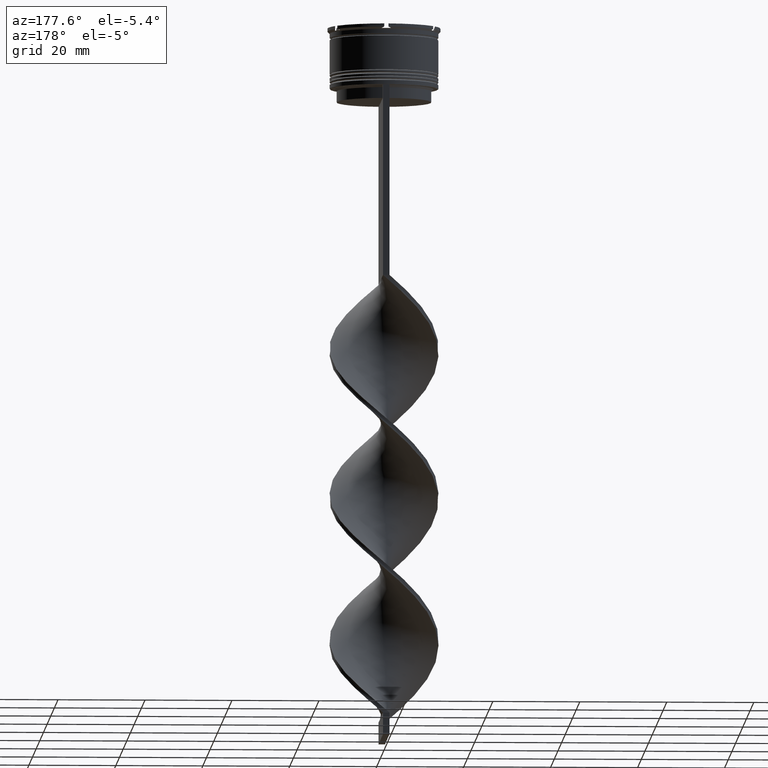
[diagram: clean part render]
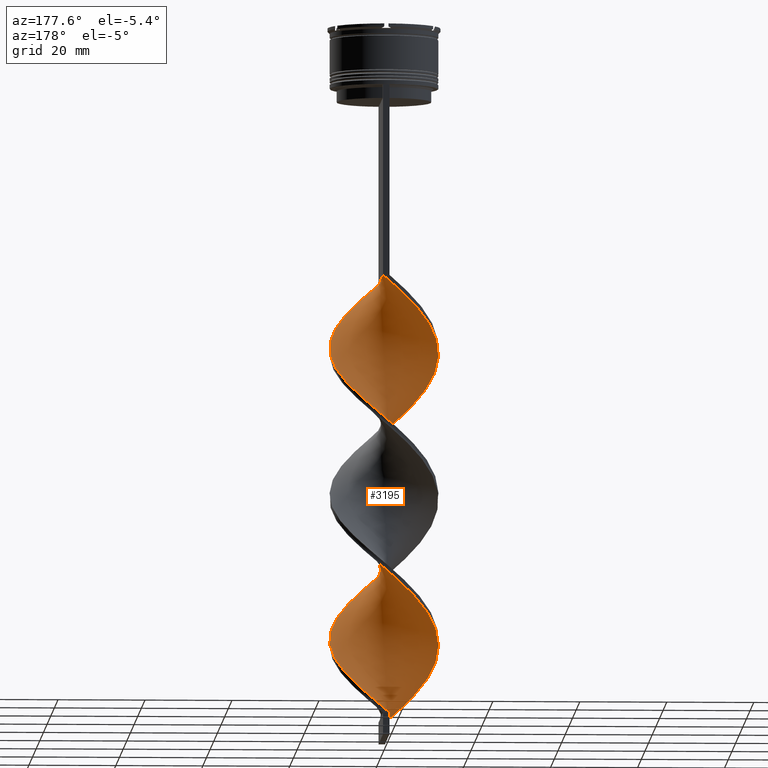
[diagram: same view with one face highlighted and labeled with its STEP entity id]
A machine part, auxiliary view. The second image highlights one B-rep face of the part: STEP entity #3195.
In plain terms, the highlighted face is a freeform B-spline surface patch.
Its self-contained STEP definition (entity closure, byte-faithful):
#1 = CARTESIAN_POINT ( 'NONE',  ( -12.13740119476139867, 3.350863215071111512, -72.58888888888890278 ) ) ;
#8 = CARTESIAN_POINT ( 'NONE',  ( 12.13740119476140045, 3.350863215071107515, -144.4111111111111541 ) ) ;
#26 = CARTESIAN_POINT ( 'NONE',  ( -3.332506835772350851, -12.07091124105925140, -89.42222222222223138 ) ) ;
#41 = CARTESIAN_POINT ( 'NONE',  ( -7.849775853840620599, 9.845090710256195976, -133.1888888888889255 ) ) ;
#47 = CARTESIAN_POINT ( 'NONE',  ( 0.5638029408209503934, -12.57882817644926199, -92.78888888888889142 ) ) ;
#60 = CARTESIAN_POINT ( 'NONE',  ( 9.791158273236577614, 7.806773960377676680, -116.3555555555555685 ) ) ;
#66 = CARTESIAN_POINT ( 'NONE',  ( -10.45031754730548279, 6.899519052838331667, -69.22222222222222854 ) ) ;
#79 = CARTESIAN_POINT ( 'NONE',  ( 12.11996919947063311, 3.149420042465475245, -111.8666666666666742 ) ) ;
#84 = CARTESIAN_POINT ( 'NONE',  ( 0.7500000000000002220, -12.50000000000000000, -125.3333333333333570 ) ) ;
#105 = CARTESIAN_POINT ( 'NONE',  ( 0.7500000000000002220, 12.50000000000000000, -125.3333333333333570 ) ) ;
#119 = CARTESIAN_POINT ( 'NONE',  ( -12.45098658456436169, 1.875559948311569913, -106.2555555555555742 ) ) ;
#124 = CARTESIAN_POINT ( 'NONE',  ( 12.45098658456436169, 1.875559948311554370, -110.7444444444444542 ) ) ;
#132 = CARTESIAN_POINT ( 'NONE',  ( -0.5638029408209555005, 12.57882817644925844, -126.4555555555555770 ) ) ;
#138 = CARTESIAN_POINT ( 'NONE',  ( -7.954078399437124247, 9.671873490467490342, -98.40000000000001990 ) ) ;
#143 = CARTESIAN_POINT ( 'NONE',  ( 12.45098658456436169, -1.875559948311565917, -72.58888888888890278 ) ) ;
#153 = CARTESIAN_POINT ( 'NONE',  ( 12.13740119476139867, -3.350863215071115953, -106.2555555555555742 ) ) ;
#159 = CARTESIAN_POINT ( 'NONE',  ( 5.631329961908789983, 11.26201202755619946, -86.05555555555557135 ) ) ;
#164 = CARTESIAN_POINT ( 'NONE',  ( 11.78895181437690276, -4.423280136619393232, -70.34444444444443434 ) ) ;
#183 = CARTESIAN_POINT ( 'NONE',  ( -6.740552907874707067, -10.55355136890619860, -118.6000000000000085 ) ) ;
#195 = CARTESIAN_POINT ( 'NONE',  ( -12.13740119476140222, -3.350863215071100853, -110.7444444444444542 ) ) ;
#213 = CARTESIAN_POINT ( 'NONE',  ( 7.954078399437126023, -9.671873490467488566, -132.0666666666666629 ) ) ;
#217 = CARTESIAN_POINT ( 'NONE',  ( 11.78895181437690454, 4.423280136619385239, -112.9888888888888943 ) ) ;
#247 = CARTESIAN_POINT ( 'NONE',  ( 1.865285434671642317, 12.38277877728589083, -89.42222222222223138 ) ) ;
#256 = CARTESIAN_POINT ( 'NONE',  ( 12.50992003955415655, -0.5607143693194658329, -141.0444444444444514 ) ) ;
#261 = CARTESIAN_POINT ( 'NONE',  ( -12.13740119476139867, 3.350863215071111512, -72.58888888888890278 ) ) ;
#283 = CARTESIAN_POINT ( 'NONE',  ( -0.7499999999999996669, 4.166666666666667851, -159.0000000000000000 ) ) ;
#305 = CARTESIAN_POINT ( 'NONE',  ( -2.063802940820959275, -12.42117182355074334, -90.54444444444445139 ) ) ;
#308 = CARTESIAN_POINT ( 'NONE',  ( 12.13740119476140045, 3.350863215071107515, -144.4111111111111256 ) ) ;
#345 = CARTESIAN_POINT ( 'NONE',  ( -4.399048945215550788, 11.72437070283936222, -129.8222222222222229 ) ) ;
#349 = EDGE_CURVE ( 'NONE', #1403, #744, #658, .T. ) ;
#356 = CARTESIAN_POINT ( 'NONE',  ( -9.725148873555948370, 7.997891686931351884, -68.10000000000000853 ) ) ;
#369 = CARTESIAN_POINT ( 'NONE',  ( -2.063802940820959275, -12.42117182355074334, -157.8777777777777942 ) ) ;
#372 = CARTESIAN_POINT ( 'NONE',  ( 12.35312734465267859, 2.052497212371872326, -143.2888888888889198 ) ) ;
#389 = CARTESIAN_POINT ( 'NONE',  ( 0.5638029408209505045, -12.57882817644926376, -92.78888888888889142 ) ) ;
#392 = CARTESIAN_POINT ( 'NONE',  ( 9.791158273236570508, -7.806773960377682009, -134.3111111111111313 ) ) ;
#408 = CARTESIAN_POINT ( 'NONE',  ( 7.954078399437128688, 9.671873490467486789, -118.6000000000000085 ) ) ;
#417 = CARTESIAN_POINT ( 'NONE',  ( -12.11996919947063311, -3.149420042465476577, -145.5333333333333599 ) ) ;
#426 = CARTESIAN_POINT ( 'NONE',  ( 6.937523532635171186, -10.50788081788356187, -63.61111111111112137 ) ) ;
#433 = CARTESIAN_POINT ( 'NONE',  ( -11.17548622105502254, 5.801146418745307898, -137.6777777777777487 ) ) ;
#442 = CARTESIAN_POINT ( 'NONE',  ( -12.50992003955415832, -0.5607143693194613920, -143.2888888888889198 ) ) ;
#447 = CARTESIAN_POINT ( 'NONE',  ( 8.787462363698287149, 8.921491198593770378, -82.68888888888889710 ) ) ;
#452 = CARTESIAN_POINT ( 'NONE',  ( -5.769367131679449479, 11.11426573822566333, -96.15555555555556566 ) ) ;
#460 = CARTESIAN_POINT ( 'NONE',  ( -5.631329961908784654, 11.26201202755620479, -130.9444444444444571 ) ) ;
#464 = CARTESIAN_POINT ( 'NONE',  ( 0.5638029408209590532, 12.57882817644925844, -90.54444444444445139 ) ) ;
#468 = CARTESIAN_POINT ( 'NONE',  ( 7.849775853840625039, 9.845090710256194200, -83.81111111111111711 ) ) ;
#477 = CARTESIAN_POINT ( 'NONE',  ( 11.20031754730548812, 5.600480947161662115, -114.1111111111111285 ) ) ;
#485 = CARTESIAN_POINT ( 'NONE',  ( -1.865285434671644094, -12.38277877728589083, -123.0888888888888886 ) ) ;
#491 = CARTESIAN_POINT ( 'NONE',  ( 12.35312734465267859, 2.052497212371872326, -75.95555555555554861 ) ) ;
#509 = CARTESIAN_POINT ( 'NONE',  ( 4.399048945215554340, 11.72437070283936045, -87.17777777777779136 ) ) ;
#523 = CARTESIAN_POINT ( 'NONE',  ( 0.7500000000000002220, 12.50000000000000000, -58.00000000000000000 ) ) ;
#525 = CARTESIAN_POINT ( 'NONE',  ( -8.787462363698288925, -8.921491198593770378, -116.3555555555555685 ) ) ;
#545 = CARTESIAN_POINT ( 'NONE',  ( 4.399048945215554340, 11.72437070283936045, -154.5111111111111200 ) ) ;
#549 = CARTESIAN_POINT ( 'NONE',  ( -12.35312734465267681, 2.052497212371875879, -141.0444444444444514 ) ) ;
#557 = CARTESIAN_POINT ( 'NONE',  ( 12.11996919947063134, -3.149420042465478353, -71.46666666666668277 ) ) ;
#569 = CARTESIAN_POINT ( 'NONE',  ( 10.61168328023406815, -6.777681757703950538, -135.4333333333333371 ) ) ;
#605 =( BOUNDED_CURVE ( )  B_SPLINE_CURVE ( 2, ( #1612, #2662, #2020, #3320, #3041, #426, #3020, #1445, #2411, #2150, #2065, #2719, #557, #1095, #2045, #4007, #4080, #3772, #1745, #3638, #1131, #1706, #447, #3693, #2981, #159, #1840, #3114, #247, #464, #1517, #2795, #2378, #1726, #1388, #1202, #138, #3948, #3991, #3000, #2487, #1769, #798, #119, #763, #1072, #1405, #1428, #2395, #2680, #3969, #3661, #782, #3677, #2703, #1116, #2083, #3355, #485, #1965, #84, #978, #3919, #2880, #1264, #1287, #3487, #1354, #392, #622, #3175, #2255, #1672, #2571, #2611, #2633, #372, #308, #951, #3242, #1988, #3537, #3831, #1901, #1581, #1651, #2589, #1309, #3895, #3561, #644 ),
 .UNSPECIFIED., .F., .T. ) 
 B_SPLINE_CURVE_WITH_KNOTS ( ( 3, 2, 2, 2, 2, 2, 2, 2, 2, 2, 2, 2, 2, 2, 2, 2, 2, 2, 2, 2, 2, 2, 2, 2, 2, 2, 2, 2, 2, 2, 2, 2, 2, 2, 2, 2, 2, 2, 2, 2, 2, 2, 2, 2, 2, 3 ),
 ( 0.000000000000000000, 0.01666666666666666644, 0.03333333333333333287, 0.05000000000000000971, 0.06666666666666666574, 0.08333333333333332871, 0.1000000000000000194, 0.1166666666666666546, 0.1333333333333333315, 0.1499999999999999944, 0.1666666666666666574, 0.1833333333333333204, 0.2000000000000000389, 0.2166666666666666741, 0.2333333333333333093, 0.2500000000000000000, 0.2666666666666666630, 0.2833333333333333259, 0.2999999999999999889, 0.3166666666666666519, 0.3333333333333333148, 0.3499999999999999223, 0.3666666666666666408, 0.3833333333333333592, 0.4000000000000000777, 0.4166666666666666852, 0.4333333333333333481, 0.4500000000000000111, 0.4666666666666666186, 0.4833333333333333370, 0.5000000000000000000, 0.5166666666666667185, 0.5333333333333333259, 0.5500000000000000444, 0.5666666666666666519, 0.5833333333333333703, 0.5999999999999999778, 0.6166666666666666963, 0.6333333333333333037, 0.6500000000000000222, 0.6666666666666666297, 0.6833333333333332371, 0.6999999999999998446, 0.7166666666666666741, 0.7333333333333332815, 0.7500000000000000000 ),
 .UNSPECIFIED. ) 
 CURVE ( )  GEOMETRIC_REPRESENTATION_ITEM ( )  RATIONAL_B_SPLINE_CURVE ( ( 1.000000000000000000, 0.9945218953682732899, 1.000000000000000000, 0.9945218953682732899, 1.000000000000000000, 0.9945218953682732899, 1.000000000000000000, 0.9945218953682732899, 1.000000000000000000, 0.9945218953682732899, 1.000000000000000000, 0.9945218953682732899, 1.000000000000000000, 0.9945218953682732899, 1.000000000000000000, 0.9945218953682732899, 1.000000000000000000, 0.9945218953682732899, 1.000000000000000000, 0.9945218953682732899, 1.000000000000000000, 0.9945218953682732899, 1.000000000000000000, 0.9945218953682732899, 1.000000000000000000, 0.9945218953682732899, 1.000000000000000000, 0.9945218953682732899, 1.000000000000000000, 0.9945218953682732899, 1.000000000000000000, 0.9945218953682732899, 1.000000000000000000, 0.9945218953682732899, 1.000000000000000000, 0.9945218953682732899, 1.000000000000000000, 0.9945218953682732899, 1.000000000000000000, 0.9945218953682732899, 1.000000000000000000, 0.9945218953682732899, 1.000000000000000000, 0.9945218953682732899, 1.000000000000000000, 0.9945218953682732899, 1.000000000000000000, 0.9945218953682732899, 1.000000000000000000, 0.9945218953682732899, 1.000000000000000000, 0.9945218953682732899, 1.000000000000000000, 0.9945218953682732899, 1.000000000000000000, 0.9945218953682732899, 1.000000000000000000, 0.9945218953682732899, 1.000000000000000000, 0.9945218953682732899, 1.000000000000000000, 0.9945218953682732899, 1.000000000000000000, 0.9945218953682732899, 1.000000000000000000, 0.9945218953682732899, 1.000000000000000000, 0.9945218953682732899, 1.000000000000000000, 0.9945218953682732899, 1.000000000000000000, 0.9945218953682732899, 1.000000000000000000, 0.9945218953682732899, 1.000000000000000000, 0.9945218953682732899, 1.000000000000000000, 0.9945218953682732899, 1.000000000000000000, 0.9945218953682732899, 1.000000000000000000, 0.9945218953682732899, 1.000000000000000000, 0.9945218953682732899, 1.000000000000000000, 0.9945218953682732899, 1.000000000000000000, 0.9945218953682732899, 1.000000000000000000, 0.9945218953682732899, 1.000000000000000000 ) ) 
 REPRESENTATION_ITEM ( '' )  );
#612 = CARTESIAN_POINT ( 'NONE',  ( 10.45031754730548457, 6.899519052838327227, -147.7777777777777715 ) ) ;
#618 = CARTESIAN_POINT ( 'NONE',  ( -12.35312734465267681, 2.052497212371875879, -73.71111111111112280 ) ) ;
#622 = CARTESIAN_POINT ( 'NONE',  ( 10.61168328023406637, -6.777681757703950538, -135.4333333333333371 ) ) ;
#628 = CARTESIAN_POINT ( 'NONE',  ( -5.769367131679456584, -11.11426573822565977, -87.17777777777779136 ) ) ;
#644 = CARTESIAN_POINT ( 'NONE',  ( -0.7499999999999986677, 12.50000000000000000, -159.0000000000000000 ) ) ;
#648 = CARTESIAN_POINT ( 'NONE',  ( -5.631329961908784654, 11.26201202755620479, -63.61111111111112137 ) ) ;
#658 = B_SPLINE_CURVE_WITH_KNOTS ( 'NONE', 3,
 ( #1939, #4122, #283, #3511 ),
 .UNSPECIFIED., .F., .F.,
 ( 4, 4 ),
 ( 0.000000000000000000, 1.000000000000000000 ),
 .UNSPECIFIED. ) ;
#681 = CARTESIAN_POINT ( 'NONE',  ( -6.937523532635175627, -10.50788081788355832, -153.3888888888889142 ) ) ;
#693 = CARTESIAN_POINT ( 'NONE',  ( 4.399048945215547235, -11.72437070283936400, -96.15555555555556566 ) ) ;
#706 = CARTESIAN_POINT ( 'NONE',  ( 0.7500000000000002220, -12.50000000000000000, -58.00000000000000000 ) ) ;
#716 = CARTESIAN_POINT ( 'NONE',  ( -3.166767928522319142, 12.18672937812252322, -61.36666666666666003 ) ) ;
#726 = CARTESIAN_POINT ( 'NONE',  ( 11.78895181437690454, 4.423280136619385239, -112.9888888888888943 ) ) ;
#733 = CARTESIAN_POINT ( 'NONE',  ( 12.50992003955415832, 0.5607143693194570622, -109.6222222222222342 ) ) ;
#744 = VERTEX_POINT ( 'NONE', #3549 ) ;
#746 = CARTESIAN_POINT ( 'NONE',  ( 7.849775853840617046, -9.845090710256195976, -99.52222222222223991 ) ) ;
#763 = CARTESIAN_POINT ( 'NONE',  ( -12.50992003955415832, 0.5607143693194728273, -107.3777777777777942 ) ) ;
#770 = CARTESIAN_POINT ( 'NONE',  ( -1.865285434671636988, 12.38277877728589260, -127.5777777777777828 ) ) ;
#778 = CARTESIAN_POINT ( 'NONE',  ( 6.740552907874702626, -10.55355136890619860, -98.40000000000001990 ) ) ;
#782 = CARTESIAN_POINT ( 'NONE',  ( -8.787462363698288925, -8.921491198593770378, -116.3555555555555685 ) ) ;
#787 = CARTESIAN_POINT ( 'NONE',  ( 6.740552907874705291, 10.55355136890619860, -84.93333333333333712 ) ) ;
#794 = CARTESIAN_POINT ( 'NONE',  ( 3.332506835772352627, 12.07091124105925140, -123.0888888888888886 ) ) ;
#798 = CARTESIAN_POINT ( 'NONE',  ( -12.11996919947063134, 3.149420042465479241, -105.1333333333333400 ) ) ;
#802 = CARTESIAN_POINT ( 'NONE',  ( 0.5638029408209590532, 12.57882817644926021, -90.54444444444445139 ) ) ;
#822 = CARTESIAN_POINT ( 'NONE',  ( 3.332506835772345966, -12.07091124105925317, -127.5777777777777828 ) ) ;
#825 = ORIENTED_EDGE ( 'NONE', *, *, #3042, .F. ) ;
#831 = EDGE_CURVE ( 'NONE', #4112, #744, #605, .T. ) ;
#840 = CARTESIAN_POINT ( 'NONE',  ( 11.17548622105502254, 5.801146418745304345, -79.32222222222222285 ) ) ;
#859 = CARTESIAN_POINT ( 'NONE',  ( -0.7499999999999986677, 12.50000000000000000, -91.66666666666667140 ) ) ;
#862 = CARTESIAN_POINT ( 'NONE',  ( -9.725148873555948370, 7.997891686931351884, -135.4333333333333371 ) ) ;
#904 = CARTESIAN_POINT ( 'NONE',  ( 8.970633266239079973, -8.835866163051415256, -133.1888888888889255 ) ) ;
#908 = CARTESIAN_POINT ( 'NONE',  ( -6.937523532635175627, -10.50788081788355832, -86.05555555555557135 ) ) ;
#920 = VERTEX_POINT ( 'NONE', #523 ) ;
#942 = CARTESIAN_POINT ( 'NONE',  ( 12.35312734465267859, 2.052497212371872326, -143.2888888888889198 ) ) ;
#951 = CARTESIAN_POINT ( 'NONE',  ( 11.65644370790820972, 4.576004816908207928, -145.5333333333333599 ) ) ;
#978 = CARTESIAN_POINT ( 'NONE',  ( 2.063802940820955723, -12.42117182355074334, -126.4555555555555770 ) ) ;
#983 = CARTESIAN_POINT ( 'NONE',  ( -12.56885349454395495, 0.7541312096726383585, -74.83333333333332860 ) ) ;
#996 = CARTESIAN_POINT ( 'NONE',  ( -3.166767928522319142, 12.18672937812252499, -128.6999999999999886 ) ) ;
#1017 = CARTESIAN_POINT ( 'NONE',  ( -4.601210730723739317, -11.72065065856775945, -155.6333333333333258 ) ) ;
#1028 = CARTESIAN_POINT ( 'NONE',  ( -7.954078399437126912, -9.671873490467486789, -84.93333333333333712 ) ) ;
#1041 = CARTESIAN_POINT ( 'NONE',  ( 8.787462363698281820, -8.921491198593777483, -100.6444444444444599 ) ) ;
#1049 = CARTESIAN_POINT ( 'NONE',  ( -4.399048945215550788, 11.72437070283936222, -62.48888888888889426 ) ) ;
#1060 = CARTESIAN_POINT ( 'NONE',  ( 12.35312734465267503, -2.052497212371882984, -107.3777777777777942 ) ) ;
#1066 = CARTESIAN_POINT ( 'NONE',  ( -6.740552907874703514, 10.55355136890620038, -132.0666666666666629 ) ) ;
#1072 = CARTESIAN_POINT ( 'NONE',  ( -12.56885349454395495, -0.7541312096726352499, -108.5000000000000000 ) ) ;
#1077 = CARTESIAN_POINT ( 'NONE',  ( -10.61168328023406815, -6.777681757703948762, -148.8999999999999488 ) ) ;
#1095 = CARTESIAN_POINT ( 'NONE',  ( 12.45098658456436169, -1.875559948311565694, -72.58888888888890278 ) ) ;
#1102 = CARTESIAN_POINT ( 'NONE',  ( -10.45031754730548812, -6.899519052838321009, -114.1111111111111285 ) ) ;
#1112 = CARTESIAN_POINT ( 'NONE',  ( 12.11996919947063311, 3.149420042465475245, -111.8666666666666742 ) ) ;
#1116 = CARTESIAN_POINT ( 'NONE',  ( -5.631329961908790871, -11.26201202755619946, -119.7222222222222143 ) ) ;
#1121 = CARTESIAN_POINT ( 'NONE',  ( 12.50992003955415655, -0.5607143693194658329, -73.71111111111112280 ) ) ;
#1131 = CARTESIAN_POINT ( 'NONE',  ( 10.45031754730548457, 6.899519052838327227, -80.44444444444445708 ) ) ;
#1135 = CARTESIAN_POINT ( 'NONE',  ( -0.5638029408209662696, -12.57882817644926021, -124.2111111111111370 ) ) ;
#1153 = CARTESIAN_POINT ( 'NONE',  ( 9.725148873555946594, 7.997891686931350996, -81.56666666666664867 ) ) ;
#1172 = CARTESIAN_POINT ( 'NONE',  ( 10.61168328023406815, -6.777681757703950538, -68.10000000000002274 ) ) ;
#1175 = CARTESIAN_POINT ( 'NONE',  ( 8.787462363698281820, -8.921491198593777483, -100.6444444444444599 ) ) ;
#1195 = CARTESIAN_POINT ( 'NONE',  ( -4.399048945215550788, 11.72437070283936222, -129.8222222222222229 ) ) ;
#1202 = CARTESIAN_POINT ( 'NONE',  ( -6.937523532635168522, 10.50788081788356365, -97.27777777777779988 ) ) ;
#1215 = CARTESIAN_POINT ( 'NONE',  ( 6.740552907874705291, 10.55355136890619860, -152.2666666666666799 ) ) ;
#1222 = CARTESIAN_POINT ( 'NONE',  ( -7.954078399437126912, -9.671873490467486789, -84.93333333333333712 ) ) ;
#1242 = CARTESIAN_POINT ( 'NONE',  ( -11.65644370790820794, 4.576004816908208817, -71.46666666666668277 ) ) ;
#1256 = CARTESIAN_POINT ( 'NONE',  ( 11.78895181437690276, -4.423280136619393232, -137.6777777777777487 ) ) ;
#1264 = CARTESIAN_POINT ( 'NONE',  ( 5.769367131679453031, -11.11426573822566155, -129.8222222222222229 ) ) ;
#1278 = CARTESIAN_POINT ( 'NONE',  ( 9.791158273236570508, -7.806773960377682009, -134.3111111111111313 ) ) ;
#1287 = CARTESIAN_POINT ( 'NONE',  ( 6.937523532635171186, -10.50788081788356187, -130.9444444444444571 ) ) ;
#1294 = CARTESIAN_POINT ( 'NONE',  ( -2.063802940820959275, -12.42117182355074334, -90.54444444444445139 ) ) ;
#1306 = CARTESIAN_POINT ( 'NONE',  ( 4.601210730723740205, 11.72065065856775945, -121.9666666666666544 ) ) ;
#1309 = CARTESIAN_POINT ( 'NONE',  ( 3.166767928522320474, 12.18672937812252322, -155.6333333333333542 ) ) ;
#1314 = CARTESIAN_POINT ( 'NONE',  ( 1.865285434671633880, -12.38277877728589260, -93.91111111111111143 ) ) ;
#1328 = CARTESIAN_POINT ( 'NONE',  ( -9.791158273236575837, -7.806773960377678456, -150.0222222222222115 ) ) ;
#1349 = CARTESIAN_POINT ( 'NONE',  ( -8.787462363698281820, 8.921491198593773930, -134.3111111111111313 ) ) ;
#1354 = CARTESIAN_POINT ( 'NONE',  ( 8.970633266239079973, -8.835866163051415256, -133.1888888888889255 ) ) ;
#1362 = CARTESIAN_POINT ( 'NONE',  ( -4.601210730723738429, -11.72065065856775767, -88.29999999999998295 ) ) ;
#1375 = CARTESIAN_POINT ( 'NONE',  ( 12.56885349454395495, -0.7541312096726399128, -108.5000000000000000 ) ) ;
#1387 = EDGE_LOOP ( 'NONE', ( #825, #2472, #2143, #1843 ) ) ;
#1388 = CARTESIAN_POINT ( 'NONE',  ( -5.769367131679449479, 11.11426573822566333, -96.15555555555556566 ) ) ;
#1393 = CARTESIAN_POINT ( 'NONE',  ( -12.56885349454395495, 0.7541312096726383585, -142.1666666666666856 ) ) ;
#1400 = CARTESIAN_POINT ( 'NONE',  ( -11.78895181437690276, -4.423280136619389680, -146.6555555555555657 ) ) ;
#1403 = VERTEX_POINT ( 'NONE', #1472 ) ;
#1405 = CARTESIAN_POINT ( 'NONE',  ( -12.35312734465267859, -2.052497212371867885, -109.6222222222222342 ) ) ;
#1411 = CARTESIAN_POINT ( 'NONE',  ( 10.45031754730548457, 6.899519052838327227, -80.44444444444445708 ) ) ;
#1420 = CARTESIAN_POINT ( 'NONE',  ( 5.631329961908781989, -11.26201202755620479, -97.27777777777779988 ) ) ;
#1428 = CARTESIAN_POINT ( 'NONE',  ( -12.13740119476140222, -3.350863215071100409, -110.7444444444444542 ) ) ;
#1432 = CARTESIAN_POINT ( 'NONE',  ( 4.601210730723737541, -11.72065065856775945, -61.36666666666666003 ) ) ;
#1445 = CARTESIAN_POINT ( 'NONE',  ( 8.970633266239079973, -8.835866163051415256, -65.85555555555555429 ) ) ;
#1450 = CARTESIAN_POINT ( 'NONE',  ( -5.631329961908790871, -11.26201202755619768, -119.7222222222222143 ) ) ;
#1462 = CARTESIAN_POINT ( 'NONE',  ( -12.50992003955415832, 0.5607143693194728273, -107.3777777777777942 ) ) ;
#1472 = CARTESIAN_POINT ( 'NONE',  ( -0.7500000000000017764, -12.50000000000000000, -159.0000000000000000 ) ) ;
#1485 = CARTESIAN_POINT ( 'NONE',  ( -7.954078399437124247, 9.671873490467490342, -98.40000000000001990 ) ) ;
#1488 = CARTESIAN_POINT ( 'NONE',  ( 5.769367131679463689, 11.11426573822565622, -120.8444444444444485 ) ) ;
#1510 = CARTESIAN_POINT ( 'NONE',  ( -3.166767928522319142, 12.18672937812252322, -128.7000000000000171 ) ) ;
#1512 = CARTESIAN_POINT ( 'NONE',  ( -10.45031754730548279, 6.899519052838331667, -69.22222222222222854 ) ) ;
#1517 = CARTESIAN_POINT ( 'NONE',  ( -0.7499999999999986677, 12.50000000000000000, -91.66666666666667140 ) ) ;
#1531 = CARTESIAN_POINT ( 'NONE',  ( -12.50992003955415832, -0.5607143693194613920, -75.95555555555554861 ) ) ;
#1551 = CARTESIAN_POINT ( 'NONE',  ( 5.631329961908789983, 11.26201202755619768, -153.3888888888889142 ) ) ;
#1557 = CARTESIAN_POINT ( 'NONE',  ( -6.740552907874703514, 10.55355136890620038, -64.73333333333333428 ) ) ;
#1572 = CARTESIAN_POINT ( 'NONE',  ( 3.166767928522320918, 12.18672937812252499, -155.6333333333333258 ) ) ;
#1578 = CARTESIAN_POINT ( 'NONE',  ( -12.11996919947063311, -3.149420042465476577, -78.20000000000000284 ) ) ;
#1581 = CARTESIAN_POINT ( 'NONE',  ( 6.740552907874705291, 10.55355136890619860, -152.2666666666666799 ) ) ;
#1591 = CARTESIAN_POINT ( 'NONE',  ( 12.45098658456436169, -1.875559948311565917, -139.9222222222222172 ) ) ;
#1595 = CARTESIAN_POINT ( 'NONE',  ( -11.78895181437690276, -4.423280136619389680, -79.32222222222222285 ) ) ;
#1612 = CARTESIAN_POINT ( 'NONE',  ( 0.7500000000000002220, -12.50000000000000000, -58.00000000000000000 ) ) ;
#1619 = CARTESIAN_POINT ( 'NONE',  ( 11.17548622105501721, -5.801146418745314115, -104.0111111111111200 ) ) ;
#1633 = CARTESIAN_POINT ( 'NONE',  ( -9.791158273236575837, -7.806773960377678456, -82.68888888888889710 ) ) ;
#1648 = CARTESIAN_POINT ( 'NONE',  ( 5.769367131679463689, 11.11426573822565622, -120.8444444444444485 ) ) ;
#1651 = CARTESIAN_POINT ( 'NONE',  ( 5.631329961908789983, 11.26201202755619946, -153.3888888888889142 ) ) ;
#1655 = CARTESIAN_POINT ( 'NONE',  ( -0.5638029408209555005, 12.57882817644925844, -59.12222222222222712 ) ) ;
#1669 = CARTESIAN_POINT ( 'NONE',  ( -11.65644370790820794, 4.576004816908208817, -138.8000000000000114 ) ) ;
#1672 = CARTESIAN_POINT ( 'NONE',  ( 12.11996919947063134, -3.149420042465478353, -138.8000000000000114 ) ) ;
#1678 = CARTESIAN_POINT ( 'NONE',  ( -1.865285434671636988, 12.38277877728589260, -60.24444444444444713 ) ) ;
#1692 = CARTESIAN_POINT ( 'NONE',  ( 3.332506835772352627, 12.07091124105925140, -123.0888888888888886 ) ) ;
#1699 = CARTESIAN_POINT ( 'NONE',  ( -12.13740119476139867, 3.350863215071111512, -139.9222222222222172 ) ) ;
#1706 = CARTESIAN_POINT ( 'NONE',  ( 9.725148873555948370, 7.997891686931350108, -81.56666666666666288 ) ) ;
#1712 = CARTESIAN_POINT ( 'NONE',  ( -12.13740119476139867, 3.350863215071111512, -139.9222222222222172 ) ) ;
#1720 = CARTESIAN_POINT ( 'NONE',  ( -5.769367131679456584, -11.11426573822565977, -154.5111111111111200 ) ) ;
#1726 = CARTESIAN_POINT ( 'NONE',  ( -4.601210730723734876, 11.72065065856775945, -95.03333333333331723 ) ) ;
#1731 = CARTESIAN_POINT ( 'NONE',  ( -8.970633266239076420, 8.835866163051417033, -99.52222222222223991 ) ) ;
#1739 = CARTESIAN_POINT ( 'NONE',  ( -8.787462363698281820, 8.921491198593773930, -134.3111111111111313 ) ) ;
#1740 =( BOUNDED_SURFACE ( )  B_SPLINE_SURFACE ( 1, 2, ( 
 ( #3853, #2229, #3148, #4121, #1919, #3444, #1557, #3766, #2857, #2838, #1512, #1856, #1242, #261, #618, #2206, #1531, #4097, #1578, #1595, #2509, #2252, #3789, #2813, #1222, #908, #2188, #3483, #1896, #305, #3953, #389, #3579, #3914, #2900, #3933, #3305, #746, #1041, #2941, #3281, #1619, #3873, #2005, #1060, #1375, #2320, #124, #79, #726, #2966, #2340, #60, #3601, #408, #3646, #1648, #1306, #1692, #2587, #105, #1962, #770, #996, #345, #2921, #2650, #41, #1349, #3622, #2027, #433, #1669, #1712, #2986, #1393, #3259, #2667, #2052, #2608, #2273, #1077, #1328, #2362, #3555, #681, #3890, #1017, #3236, #369, #2296 ),
 ( #706, #1986, #2629, #1432, #2708, #2384, #3666, #3025, #3062, #1172, #1750, #164, #4027, #143, #1121, #3046, #491, #1788, #3700, #840, #1411, #1153, #3326, #468, #787, #2399, #509, #2764, #4050, #802, #859, #3996, #2069, #3681, #452, #2458, #1485, #1731, #2687, #2087, #3737, #3361, #3720, #3005, #1462, #3976, #3341, #195, #3078, #2121, #1102, #1774, #525, #2740, #183, #1450, #2440, #2724, #4011, #1135, #3397, #2417, #822, #2107, #3381, #1804, #213, #904, #1278, #569, #2201, #1256, #3124, #1591, #256, #2164, #942, #8, #3505, #3478, #612, #1891, #2871, #2183, #1215, #1551, #545, #1572, #2224, #2539, #2830 ) ),
 .UNSPECIFIED., .F., .F., .F. ) 
 B_SPLINE_SURFACE_WITH_KNOTS ( ( 2, 2 ),
 ( 3, 2, 2, 2, 2, 2, 2, 2, 2, 2, 2, 2, 2, 2, 2, 2, 2, 2, 2, 2, 2, 2, 2, 2, 2, 2, 2, 2, 2, 2, 2, 2, 2, 2, 2, 2, 2, 2, 2, 2, 2, 2, 2, 2, 2, 3 ),
 ( 0.000000000000000000, 1.000000000000000000 ),
 ( 0.000000000000000000, 0.01666666666666666644, 0.03333333333333333287, 0.05000000000000000278, 0.06666666666666666574, 0.08333333333333332871, 0.1000000000000000056, 0.1166666666666666685, 0.1333333333333333315, 0.1499999999999999944, 0.1666666666666666574, 0.1833333333333333204, 0.2000000000000000111, 0.2166666666666666741, 0.2333333333333333370, 0.2500000000000000000, 0.2666666666666666630, 0.2833333333333333259, 0.2999999999999999889, 0.3166666666666666519, 0.3333333333333333148, 0.3499999999999999778, 0.3666666666666666408, 0.3833333333333333592, 0.4000000000000000222, 0.4166666666666666852, 0.4333333333333333481, 0.4500000000000000111, 0.4666666666666666741, 0.4833333333333333370, 0.5000000000000000000, 0.5166666666666667185, 0.5333333333333333259, 0.5500000000000000444, 0.5666666666666666519, 0.5833333333333333703, 0.5999999999999999778, 0.6166666666666666963, 0.6333333333333333037, 0.6500000000000000222, 0.6666666666666666297, 0.6833333333333333481, 0.6999999999999999556, 0.7166666666666666741, 0.7333333333333332815, 0.7500000000000000000 ),
 .UNSPECIFIED. ) 
 GEOMETRIC_REPRESENTATION_ITEM ( )  RATIONAL_B_SPLINE_SURFACE ( (
 ( 1.000000000000000000, 0.9945218953682732899, 1.000000000000000000, 0.9945218953682732899, 1.000000000000000000, 0.9945218953682732899, 1.000000000000000000, 0.9945218953682732899, 1.000000000000000000, 0.9945218953682732899, 1.000000000000000000, 0.9945218953682732899, 1.000000000000000000, 0.9945218953682732899, 1.000000000000000000, 0.9945218953682732899, 1.000000000000000000, 0.9945218953682732899, 1.000000000000000000, 0.9945218953682732899, 1.000000000000000000, 0.9945218953682732899, 1.000000000000000000, 0.9945218953682732899, 1.000000000000000000, 0.9945218953682732899, 1.000000000000000000, 0.9945218953682732899, 1.000000000000000000, 0.9945218953682732899, 1.000000000000000000, 0.9945218953682732899, 1.000000000000000000, 0.9945218953682732899, 1.000000000000000000, 0.9945218953682732899, 1.000000000000000000, 0.9945218953682732899, 1.000000000000000000, 0.9945218953682732899, 1.000000000000000000, 0.9945218953682732899, 1.000000000000000000, 0.9945218953682732899, 1.000000000000000000, 0.9945218953682732899, 1.000000000000000000, 0.9945218953682732899, 1.000000000000000000, 0.9945218953682732899, 1.000000000000000000, 0.9945218953682732899, 1.000000000000000000, 0.9945218953682732899, 1.000000000000000000, 0.9945218953682732899, 1.000000000000000000, 0.9945218953682732899, 1.000000000000000000, 0.9945218953682732899, 1.000000000000000000, 0.9945218953682732899, 1.000000000000000000, 0.9945218953682732899, 1.000000000000000000, 0.9945218953682732899, 1.000000000000000000, 0.9945218953682732899, 1.000000000000000000, 0.9945218953682732899, 1.000000000000000000, 0.9945218953682732899, 1.000000000000000000, 0.9945218953682732899, 1.000000000000000000, 0.9945218953682732899, 1.000000000000000000, 0.9945218953682732899, 1.000000000000000000, 0.9945218953682732899, 1.000000000000000000, 0.9945218953682732899, 1.000000000000000000, 0.9945218953682732899, 1.000000000000000000, 0.9945218953682732899, 1.000000000000000000, 0.9945218953682732899, 1.000000000000000000, 0.9945218953682732899, 1.000000000000000000),
 ( 1.000000000000000000, 0.9945218953682732899, 1.000000000000000000, 0.9945218953682732899, 1.000000000000000000, 0.9945218953682732899, 1.000000000000000000, 0.9945218953682732899, 1.000000000000000000, 0.9945218953682732899, 1.000000000000000000, 0.9945218953682732899, 1.000000000000000000, 0.9945218953682732899, 1.000000000000000000, 0.9945218953682732899, 1.000000000000000000, 0.9945218953682732899, 1.000000000000000000, 0.9945218953682732899, 1.000000000000000000, 0.9945218953682732899, 1.000000000000000000, 0.9945218953682732899, 1.000000000000000000, 0.9945218953682732899, 1.000000000000000000, 0.9945218953682732899, 1.000000000000000000, 0.9945218953682732899, 1.000000000000000000, 0.9945218953682732899, 1.000000000000000000, 0.9945218953682732899, 1.000000000000000000, 0.9945218953682732899, 1.000000000000000000, 0.9945218953682732899, 1.000000000000000000, 0.9945218953682732899, 1.000000000000000000, 0.9945218953682732899, 1.000000000000000000, 0.9945218953682732899, 1.000000000000000000, 0.9945218953682732899, 1.000000000000000000, 0.9945218953682732899, 1.000000000000000000, 0.9945218953682732899, 1.000000000000000000, 0.9945218953682732899, 1.000000000000000000, 0.9945218953682732899, 1.000000000000000000, 0.9945218953682732899, 1.000000000000000000, 0.9945218953682732899, 1.000000000000000000, 0.9945218953682732899, 1.000000000000000000, 0.9945218953682732899, 1.000000000000000000, 0.9945218953682732899, 1.000000000000000000, 0.9945218953682732899, 1.000000000000000000, 0.9945218953682732899, 1.000000000000000000, 0.9945218953682732899, 1.000000000000000000, 0.9945218953682732899, 1.000000000000000000, 0.9945218953682732899, 1.000000000000000000, 0.9945218953682732899, 1.000000000000000000, 0.9945218953682732899, 1.000000000000000000, 0.9945218953682732899, 1.000000000000000000, 0.9945218953682732899, 1.000000000000000000, 0.9945218953682732899, 1.000000000000000000, 0.9945218953682732899, 1.000000000000000000, 0.9945218953682732899, 1.000000000000000000, 0.9945218953682732899, 1.000000000000000000) ) ) 
 REPRESENTATION_ITEM ( '' )  SURFACE ( )  );
#1745 = CARTESIAN_POINT ( 'NONE',  ( 11.65644370790820972, 4.576004816908207928, -78.20000000000000284 ) ) ;
#1750 = CARTESIAN_POINT ( 'NONE',  ( 11.20031754730548279, -5.600480947161672773, -69.22222222222222854 ) ) ;
#1769 = CARTESIAN_POINT ( 'NONE',  ( -11.78895181437689743, 4.423280136619400338, -104.0111111111111057 ) ) ;
#1774 = CARTESIAN_POINT ( 'NONE',  ( -9.725148873555948370, -7.997891686931350996, -115.2333333333333343 ) ) ;
#1788 = CARTESIAN_POINT ( 'NONE',  ( 12.13740119476140045, 3.350863215071107515, -77.07777777777778283 ) ) ;
#1804 = CARTESIAN_POINT ( 'NONE',  ( 6.937523532635172074, -10.50788081788356187, -130.9444444444444287 ) ) ;
#1807 = CARTESIAN_POINT ( 'NONE',  ( -7.954078399437126912, -9.671873490467486789, -152.2666666666666799 ) ) ;
#1832 = CARTESIAN_POINT ( 'NONE',  ( -12.45098658456435992, -1.875559948311561920, -144.4111111111111256 ) ) ;
#1840 = CARTESIAN_POINT ( 'NONE',  ( 4.399048945215554340, 11.72437070283936045, -87.17777777777779136 ) ) ;
#1843 = ORIENTED_EDGE ( 'NONE', *, *, #2503, .F. ) ;
#1856 = CARTESIAN_POINT ( 'NONE',  ( -11.17548622105502254, 5.801146418745307898, -70.34444444444443434 ) ) ;
#1891 = CARTESIAN_POINT ( 'NONE',  ( 9.725148873555946594, 7.997891686931350996, -148.8999999999999488 ) ) ;
#1896 = CARTESIAN_POINT ( 'NONE',  ( -3.332506835772350851, -12.07091124105925140, -89.42222222222223138 ) ) ;
#1901 = CARTESIAN_POINT ( 'NONE',  ( 7.849775853840625039, 9.845090710256192423, -151.1444444444444457 ) ) ;
#1912 = CARTESIAN_POINT ( 'NONE',  ( 0.7500000000000002220, -12.50000000000000000, -58.00000000000000000 ) ) ;
#1919 = CARTESIAN_POINT ( 'NONE',  ( -4.399048945215550788, 11.72437070283936222, -62.48888888888889426 ) ) ;
#1926 = CARTESIAN_POINT ( 'NONE',  ( -11.78895181437690276, -4.423280136619389680, -79.32222222222222285 ) ) ;
#1939 = CARTESIAN_POINT ( 'NONE',  ( -0.7500000000000017764, -12.50000000000000000, -159.0000000000000000 ) ) ;
#1947 = CARTESIAN_POINT ( 'NONE',  ( -12.11996919947063311, -3.149420042465476577, -78.20000000000000284 ) ) ;
#1962 = CARTESIAN_POINT ( 'NONE',  ( -0.5638029408209555005, 12.57882817644926021, -126.4555555555555628 ) ) ;
#1965 = CARTESIAN_POINT ( 'NONE',  ( -0.5638029408209662696, -12.57882817644925844, -124.2111111111111370 ) ) ;
#1972 = CARTESIAN_POINT ( 'NONE',  ( -12.35312734465267681, 2.052497212371875879, -73.71111111111112280 ) ) ;
#1986 = CARTESIAN_POINT ( 'NONE',  ( 2.063802940820956167, -12.42117182355074334, -59.12222222222222712 ) ) ;
#1988 = CARTESIAN_POINT ( 'NONE',  ( 10.45031754730548457, 6.899519052838327227, -147.7777777777777715 ) ) ;
#1994 = CARTESIAN_POINT ( 'NONE',  ( -6.740552907874703514, 10.55355136890620038, -64.73333333333333428 ) ) ;
#2005 = CARTESIAN_POINT ( 'NONE',  ( 12.13740119476139867, -3.350863215071115953, -106.2555555555555742 ) ) ;
#2020 = CARTESIAN_POINT ( 'NONE',  ( 3.332506835772345966, -12.07091124105925317, -60.24444444444444713 ) ) ;
#2027 = CARTESIAN_POINT ( 'NONE',  ( -10.45031754730548279, 6.899519052838331667, -136.5555555555555713 ) ) ;
#2037 = CARTESIAN_POINT ( 'NONE',  ( -12.56885349454395495, 0.7541312096726383585, -142.1666666666666856 ) ) ;
#2045 = CARTESIAN_POINT ( 'NONE',  ( 12.50992003955415655, -0.5607143693194658329, -73.71111111111112280 ) ) ;
#2052 = CARTESIAN_POINT ( 'NONE',  ( -12.11996919947063311, -3.149420042465476577, -145.5333333333333599 ) ) ;
#2060 = CARTESIAN_POINT ( 'NONE',  ( 12.35312734465267503, -2.052497212371882984, -107.3777777777777942 ) ) ;
#2065 = CARTESIAN_POINT ( 'NONE',  ( 11.20031754730548279, -5.600480947161672773, -69.22222222222222854 ) ) ;
#2069 = CARTESIAN_POINT ( 'NONE',  ( -3.332506835772342857, 12.07091124105925317, -93.91111111111111143 ) ) ;
#2077 = CARTESIAN_POINT ( 'NONE',  ( 6.937523532635175627, 10.50788081788355832, -119.7222222222222143 ) ) ;
#2083 = CARTESIAN_POINT ( 'NONE',  ( -4.399048945215561446, -11.72437070283935689, -120.8444444444444485 ) ) ;
#2087 = CARTESIAN_POINT ( 'NONE',  ( -10.61168328023406637, 6.777681757703952314, -101.7666666666666515 ) ) ;
#2107 = CARTESIAN_POINT ( 'NONE',  ( 4.601210730723737541, -11.72065065856775945, -128.6999999999999886 ) ) ;
#2110 = DIRECTION ( 'NONE',  ( 0.000000000000000000, 1.000000000000000000, 0.000000000000000000 ) ) ;
#2121 = CARTESIAN_POINT ( 'NONE',  ( -11.17548622105502432, -5.801146418745299904, -112.9888888888888943 ) ) ;
#2142 = CARTESIAN_POINT ( 'NONE',  ( -11.65644370790820794, 4.576004816908208817, -138.8000000000000114 ) ) ;
#2143 = ORIENTED_EDGE ( 'NONE', *, *, #349, .F. ) ;
#2150 = CARTESIAN_POINT ( 'NONE',  ( 10.61168328023406637, -6.777681757703950538, -68.10000000000000853 ) ) ;
#2164 = CARTESIAN_POINT ( 'NONE',  ( 12.56885349454395495, 0.7541312096726368042, -142.1666666666666856 ) ) ;
#2183 = CARTESIAN_POINT ( 'NONE',  ( 7.849775853840625039, 9.845090710256194200, -151.1444444444444457 ) ) ;
#2188 = CARTESIAN_POINT ( 'NONE',  ( -5.769367131679456584, -11.11426573822565977, -87.17777777777779136 ) ) ;
#2201 = CARTESIAN_POINT ( 'NONE',  ( 11.20031754730548279, -5.600480947161672773, -136.5555555555555713 ) ) ;
#2206 = CARTESIAN_POINT ( 'NONE',  ( -12.56885349454395495, 0.7541312096726383585, -74.83333333333334281 ) ) ;
#2224 = CARTESIAN_POINT ( 'NONE',  ( 1.865285434671642317, 12.38277877728589083, -156.7555555555555600 ) ) ;
#2229 = CARTESIAN_POINT ( 'NONE',  ( -0.5638029408209555005, 12.57882817644926021, -59.12222222222222712 ) ) ;
#2252 = CARTESIAN_POINT ( 'NONE',  ( -10.61168328023406815, -6.777681757703948762, -81.56666666666664867 ) ) ;
#2255 = CARTESIAN_POINT ( 'NONE',  ( 11.78895181437690276, -4.423280136619393232, -137.6777777777777487 ) ) ;
#2273 = CARTESIAN_POINT ( 'NONE',  ( -11.20031754730548457, -5.600480947161668333, -147.7777777777777715 ) ) ;
#2282 = CARTESIAN_POINT ( 'NONE',  ( -11.20031754730548457, -5.600480947161668333, -80.44444444444445708 ) ) ;
#2296 = CARTESIAN_POINT ( 'NONE',  ( -0.7500000000000017764, -12.50000000000000000, -159.0000000000000000 ) ) ;
#2320 = CARTESIAN_POINT ( 'NONE',  ( 12.50992003955415832, 0.5607143693194570622, -109.6222222222222342 ) ) ;
#2329 = CARTESIAN_POINT ( 'NONE',  ( -12.50992003955415832, -0.5607143693194613920, -75.95555555555554861 ) ) ;
#2340 = CARTESIAN_POINT ( 'NONE',  ( 10.61168328023406993, 6.777681757703947873, -115.2333333333333343 ) ) ;
#2362 = CARTESIAN_POINT ( 'NONE',  ( -8.970633266239079973, -8.835866163051411704, -151.1444444444444457 ) ) ;
#2371 = CARTESIAN_POINT ( 'NONE',  ( -10.45031754730548279, 6.899519052838331667, -136.5555555555555713 ) ) ;
#2378 = CARTESIAN_POINT ( 'NONE',  ( -3.332506835772342857, 12.07091124105925317, -93.91111111111111143 ) ) ;
#2384 = CARTESIAN_POINT ( 'NONE',  ( 6.937523532635172074, -10.50788081788356187, -63.61111111111111427 ) ) ;
#2391 = CARTESIAN_POINT ( 'NONE',  ( 12.56885349454395495, -0.7541312096726398018, -108.5000000000000000 ) ) ;
#2395 = CARTESIAN_POINT ( 'NONE',  ( -11.65644370790820972, -4.576004816908206152, -111.8666666666666742 ) ) ;
#2399 = CARTESIAN_POINT ( 'NONE',  ( 5.631329961908789983, 11.26201202755619768, -86.05555555555557135 ) ) ;
#2411 = CARTESIAN_POINT ( 'NONE',  ( 9.791158273236570508, -7.806773960377682009, -66.97777777777777430 ) ) ;
#2417 = CARTESIAN_POINT ( 'NONE',  ( 2.063802940820956167, -12.42117182355074334, -126.4555555555555628 ) ) ;
#2440 = CARTESIAN_POINT ( 'NONE',  ( -4.399048945215561446, -11.72437070283935689, -120.8444444444444485 ) ) ;
#2458 = CARTESIAN_POINT ( 'NONE',  ( -6.937523532635169410, 10.50788081788356365, -97.27777777777778567 ) ) ;
#2461 = CARTESIAN_POINT ( 'NONE',  ( 11.17548622105501721, -5.801146418745314115, -104.0111111111111057 ) ) ;
#2472 = ORIENTED_EDGE ( 'NONE', *, *, #831, .T. ) ;
#2487 = CARTESIAN_POINT ( 'NONE',  ( -11.20031754730548101, 5.600480947161677214, -102.8888888888888857 ) ) ;
#2503 = EDGE_CURVE ( 'NONE', #920, #1403, #3176, .T. ) ;
#2509 = CARTESIAN_POINT ( 'NONE',  ( -11.20031754730548457, -5.600480947161668333, -80.44444444444445708 ) ) ;
#2539 = CARTESIAN_POINT ( 'NONE',  ( 0.5638029408209590532, 12.57882817644926021, -157.8777777777777942 ) ) ;
#2553 = CARTESIAN_POINT ( 'NONE',  ( -11.17548622105502076, 5.801146418745308786, -70.34444444444444855 ) ) ;
#2571 = CARTESIAN_POINT ( 'NONE',  ( 12.45098658456436169, -1.875559948311565694, -139.9222222222222172 ) ) ;
#2587 = CARTESIAN_POINT ( 'NONE',  ( 2.063802940820966825, 12.42117182355074334, -124.2111111111111370 ) ) ;
#2589 = CARTESIAN_POINT ( 'NONE',  ( 4.399048945215554340, 11.72437070283936045, -154.5111111111111200 ) ) ;
#2594 = CARTESIAN_POINT ( 'NONE',  ( 3.166767928522317810, -12.18672937812252499, -95.03333333333331723 ) ) ;
#2608 = CARTESIAN_POINT ( 'NONE',  ( -11.78895181437690276, -4.423280136619389680, -146.6555555555555657 ) ) ;
#2611 = CARTESIAN_POINT ( 'NONE',  ( 12.50992003955415655, -0.5607143693194658329, -141.0444444444444514 ) ) ;
#2629 = CARTESIAN_POINT ( 'NONE',  ( 3.332506835772345966, -12.07091124105925317, -60.24444444444444713 ) ) ;
#2633 = CARTESIAN_POINT ( 'NONE',  ( 12.56885349454395495, 0.7541312096726368042, -142.1666666666666856 ) ) ;
#2650 = CARTESIAN_POINT ( 'NONE',  ( -6.740552907874703514, 10.55355136890620038, -132.0666666666666629 ) ) ;
#2656 = CARTESIAN_POINT ( 'NONE',  ( -3.332506835772350851, -12.07091124105925140, -156.7555555555555600 ) ) ;
#2662 = CARTESIAN_POINT ( 'NONE',  ( 2.063802940820955723, -12.42117182355074334, -59.12222222222222712 ) ) ;
#2667 = CARTESIAN_POINT ( 'NONE',  ( -12.45098658456435992, -1.875559948311561920, -144.4111111111111541 ) ) ;
#2674 = CARTESIAN_POINT ( 'NONE',  ( 9.725148873555946594, -7.997891686931353661, -101.7666666666666515 ) ) ;
#2680 = CARTESIAN_POINT ( 'NONE',  ( -11.17548622105502254, -5.801146418745300792, -112.9888888888888943 ) ) ;
#2687 = CARTESIAN_POINT ( 'NONE',  ( -9.791158273236570508, 7.806773960377685562, -100.6444444444444599 ) ) ;
#2690 = LINE ( 'NONE', #3981, #3368 ) ;
#2695 = CARTESIAN_POINT ( 'NONE',  ( 10.61168328023406815, 6.777681757703947873, -115.2333333333333343 ) ) ;
#2703 = CARTESIAN_POINT ( 'NONE',  ( -6.740552907874707067, -10.55355136890619860, -118.6000000000000085 ) ) ;
#2708 = CARTESIAN_POINT ( 'NONE',  ( 5.769367131679453031, -11.11426573822566155, -62.48888888888889426 ) ) ;
#2719 = CARTESIAN_POINT ( 'NONE',  ( 11.78895181437690276, -4.423280136619393232, -70.34444444444444855 ) ) ;
#2724 = CARTESIAN_POINT ( 'NONE',  ( -3.166767928522322251, -12.18672937812252499, -121.9666666666666544 ) ) ;
#2740 = CARTESIAN_POINT ( 'NONE',  ( -7.849775853840630369, -9.845090710256190647, -117.4777777777777885 ) ) ;
#2764 = CARTESIAN_POINT ( 'NONE',  ( 3.166767928522320918, 12.18672937812252499, -88.29999999999998295 ) ) ;
#2767 = CARTESIAN_POINT ( 'NONE',  ( -1.865285434671636988, 12.38277877728589260, -127.5777777777777828 ) ) ;
#2788 = CARTESIAN_POINT ( 'NONE',  ( 0.7500000000000002220, 12.50000000000000000, -125.3333333333333570 ) ) ;
#2795 = CARTESIAN_POINT ( 'NONE',  ( -2.063802940820951726, 12.42117182355074689, -92.78888888888889142 ) ) ;
#2813 = CARTESIAN_POINT ( 'NONE',  ( -8.970633266239079973, -8.835866163051411704, -83.81111111111111711 ) ) ;
#2830 = CARTESIAN_POINT ( 'NONE',  ( -0.7499999999999986677, 12.50000000000000000, -159.0000000000000000 ) ) ;
#2838 = CARTESIAN_POINT ( 'NONE',  ( -9.725148873555946594, 7.997891686931353661, -68.10000000000002274 ) ) ;
#2857 = CARTESIAN_POINT ( 'NONE',  ( -8.787462363698281820, 8.921491198593773930, -66.97777777777777430 ) ) ;
#2871 = CARTESIAN_POINT ( 'NONE',  ( 8.787462363698287149, 8.921491198593770378, -150.0222222222222115 ) ) ;
#2880 = CARTESIAN_POINT ( 'NONE',  ( 4.601210730723736653, -11.72065065856775767, -128.7000000000000171 ) ) ;
#2886 = CARTESIAN_POINT ( 'NONE',  ( -6.937523532635174739, -10.50788081788355832, -86.05555555555557135 ) ) ;
#2900 = CARTESIAN_POINT ( 'NONE',  ( 4.399048945215547235, -11.72437070283936400, -96.15555555555556566 ) ) ;
#2910 = CARTESIAN_POINT ( 'NONE',  ( -0.7500000000000017764, -12.50000000000000000, -91.66666666666667140 ) ) ;
#2921 = CARTESIAN_POINT ( 'NONE',  ( -5.631329961908784654, 11.26201202755620123, -130.9444444444444287 ) ) ;
#2928 = CARTESIAN_POINT ( 'NONE',  ( -7.849775853840621487, 9.845090710256194200, -65.85555555555555429 ) ) ;
#2941 = CARTESIAN_POINT ( 'NONE',  ( 9.725148873555944817, -7.997891686931354549, -101.7666666666666515 ) ) ;
#2966 = CARTESIAN_POINT ( 'NONE',  ( 11.20031754730548812, 5.600480947161662115, -114.1111111111111285 ) ) ;
#2975 = CARTESIAN_POINT ( 'NONE',  ( 12.45098658456436169, 1.875559948311554148, -110.7444444444444542 ) ) ;
#2981 = CARTESIAN_POINT ( 'NONE',  ( 6.740552907874705291, 10.55355136890619860, -84.93333333333333712 ) ) ;
#2986 = CARTESIAN_POINT ( 'NONE',  ( -12.35312734465267681, 2.052497212371875879, -141.0444444444444514 ) ) ;
#2995 = CARTESIAN_POINT ( 'NONE',  ( -4.601210730723738429, -11.72065065856775767, -155.6333333333333542 ) ) ;
#3000 = CARTESIAN_POINT ( 'NONE',  ( -10.61168328023406460, 6.777681757703952314, -101.7666666666666515 ) ) ;
#3005 = CARTESIAN_POINT ( 'NONE',  ( -12.45098658456436169, 1.875559948311569691, -106.2555555555555742 ) ) ;
#3013 = CARTESIAN_POINT ( 'NONE',  ( -11.20031754730548457, -5.600480947161668333, -147.7777777777777715 ) ) ;
#3020 = CARTESIAN_POINT ( 'NONE',  ( 7.954078399437126023, -9.671873490467488566, -64.73333333333333428 ) ) ;
#3025 = CARTESIAN_POINT ( 'NONE',  ( 8.970633266239079973, -8.835866163051415256, -65.85555555555555429 ) ) ;
#3041 = CARTESIAN_POINT ( 'NONE',  ( 5.769367131679453031, -11.11426573822566155, -62.48888888888889426 ) ) ;
#3042 = EDGE_CURVE ( 'NONE', #4112, #920, #2690, .T. ) ;
#3046 = CARTESIAN_POINT ( 'NONE',  ( 12.56885349454395495, 0.7541312096726368042, -74.83333333333334281 ) ) ;
#3062 = CARTESIAN_POINT ( 'NONE',  ( 9.791158273236570508, -7.806773960377682009, -66.97777777777777430 ) ) ;
#3078 = CARTESIAN_POINT ( 'NONE',  ( -11.65644370790820972, -4.576004816908206152, -111.8666666666666742 ) ) ;
#3081 = CARTESIAN_POINT ( 'NONE',  ( -6.937523532635174739, -10.50788081788355832, -153.3888888888889142 ) ) ;
#3106 = CARTESIAN_POINT ( 'NONE',  ( -9.791158273236575837, -7.806773960377678456, -150.0222222222222115 ) ) ;
#3114 = CARTESIAN_POINT ( 'NONE',  ( 3.166767928522320474, 12.18672937812252322, -88.29999999999998295 ) ) ;
#3124 = CARTESIAN_POINT ( 'NONE',  ( 12.11996919947063134, -3.149420042465478353, -138.8000000000000114 ) ) ;
#3148 = CARTESIAN_POINT ( 'NONE',  ( -1.865285434671636988, 12.38277877728589260, -60.24444444444444713 ) ) ;
#3175 = CARTESIAN_POINT ( 'NONE',  ( 11.20031754730548279, -5.600480947161672773, -136.5555555555555713 ) ) ;
#3176 =( BOUNDED_CURVE ( )  B_SPLINE_CURVE ( 2, ( #3520, #1655, #1678, #716, #1049, #648, #1994, #2928, #3859, #356, #66, #2553, #3541, #1, #1972, #983, #2329, #3180, #1947, #1926, #2282, #3838, #1633, #3200, #1028, #2886, #628, #1362, #26, #1294, #2910, #47, #1314, #2594, #693, #1420, #778, #3289, #1175, #2674, #3673, #2461, #4053, #153, #2060, #2391, #733, #2975, #1112, #217, #477, #2695, #3417, #3334, #3985, #2077, #1488, #3314, #794, #3349, #2788, #132, #2767, #1510, #1195, #460, #1066, #3740, #1739, #862, #2371, #3655, #2142, #1699, #549, #2037, #442, #1832, #417, #1400, #3013, #4074, #3106, #3608, #1807, #3081, #1720, #2995, #2656, #3942, #3961 ),
 .UNSPECIFIED., .F., .T. ) 
 B_SPLINE_CURVE_WITH_KNOTS ( ( 3, 2, 2, 2, 2, 2, 2, 2, 2, 2, 2, 2, 2, 2, 2, 2, 2, 2, 2, 2, 2, 2, 2, 2, 2, 2, 2, 2, 2, 2, 2, 2, 2, 2, 2, 2, 2, 2, 2, 2, 2, 2, 2, 2, 2, 3 ),
 ( 0.000000000000000000, 0.01666666666666666644, 0.03333333333333333287, 0.05000000000000000971, 0.06666666666666666574, 0.08333333333333332871, 0.1000000000000000194, 0.1166666666666666546, 0.1333333333333333315, 0.1499999999999999944, 0.1666666666666666574, 0.1833333333333333204, 0.2000000000000000389, 0.2166666666666666741, 0.2333333333333333093, 0.2500000000000000000, 0.2666666666666666630, 0.2833333333333333259, 0.2999999999999999889, 0.3166666666666666519, 0.3333333333333333148, 0.3499999999999999223, 0.3666666666666666408, 0.3833333333333333592, 0.4000000000000000777, 0.4166666666666666852, 0.4333333333333333481, 0.4500000000000000111, 0.4666666666666666186, 0.4833333333333333370, 0.5000000000000000000, 0.5166666666666667185, 0.5333333333333333259, 0.5500000000000000444, 0.5666666666666666519, 0.5833333333333333703, 0.5999999999999999778, 0.6166666666666666963, 0.6333333333333333037, 0.6500000000000000222, 0.6666666666666666297, 0.6833333333333332371, 0.6999999999999998446, 0.7166666666666666741, 0.7333333333333332815, 0.7500000000000000000 ),
 .UNSPECIFIED. ) 
 CURVE ( )  GEOMETRIC_REPRESENTATION_ITEM ( )  RATIONAL_B_SPLINE_CURVE ( ( 1.000000000000000000, 0.9945218953682732899, 1.000000000000000000, 0.9945218953682732899, 1.000000000000000000, 0.9945218953682732899, 1.000000000000000000, 0.9945218953682732899, 1.000000000000000000, 0.9945218953682732899, 1.000000000000000000, 0.9945218953682732899, 1.000000000000000000, 0.9945218953682732899, 1.000000000000000000, 0.9945218953682732899, 1.000000000000000000, 0.9945218953682732899, 1.000000000000000000, 0.9945218953682732899, 1.000000000000000000, 0.9945218953682732899, 1.000000000000000000, 0.9945218953682732899, 1.000000000000000000, 0.9945218953682732899, 1.000000000000000000, 0.9945218953682732899, 1.000000000000000000, 0.9945218953682732899, 1.000000000000000000, 0.9945218953682732899, 1.000000000000000000, 0.9945218953682732899, 1.000000000000000000, 0.9945218953682732899, 1.000000000000000000, 0.9945218953682732899, 1.000000000000000000, 0.9945218953682732899, 1.000000000000000000, 0.9945218953682732899, 1.000000000000000000, 0.9945218953682732899, 1.000000000000000000, 0.9945218953682732899, 1.000000000000000000, 0.9945218953682732899, 1.000000000000000000, 0.9945218953682732899, 1.000000000000000000, 0.9945218953682732899, 1.000000000000000000, 0.9945218953682732899, 1.000000000000000000, 0.9945218953682732899, 1.000000000000000000, 0.9945218953682732899, 1.000000000000000000, 0.9945218953682732899, 1.000000000000000000, 0.9945218953682732899, 1.000000000000000000, 0.9945218953682732899, 1.000000000000000000, 0.9945218953682732899, 1.000000000000000000, 0.9945218953682732899, 1.000000000000000000, 0.9945218953682732899, 1.000000000000000000, 0.9945218953682732899, 1.000000000000000000, 0.9945218953682732899, 1.000000000000000000, 0.9945218953682732899, 1.000000000000000000, 0.9945218953682732899, 1.000000000000000000, 0.9945218953682732899, 1.000000000000000000, 0.9945218953682732899, 1.000000000000000000, 0.9945218953682732899, 1.000000000000000000, 0.9945218953682732899, 1.000000000000000000, 0.9945218953682732899, 1.000000000000000000, 0.9945218953682732899, 1.000000000000000000 ) ) 
 REPRESENTATION_ITEM ( '' )  );
#3180 = CARTESIAN_POINT ( 'NONE',  ( -12.45098658456435992, -1.875559948311561920, -77.07777777777778283 ) ) ;
#3195 = ADVANCED_FACE ( 'NONE', ( #4137 ), #1740, .T. ) ;
#3200 = CARTESIAN_POINT ( 'NONE',  ( -8.970633266239079973, -8.835866163051411704, -83.81111111111111711 ) ) ;
#3236 = CARTESIAN_POINT ( 'NONE',  ( -3.332506835772350851, -12.07091124105925140, -156.7555555555555600 ) ) ;
#3242 = CARTESIAN_POINT ( 'NONE',  ( 11.17548622105502076, 5.801146418745305233, -146.6555555555555657 ) ) ;
#3259 = CARTESIAN_POINT ( 'NONE',  ( -12.50992003955415832, -0.5607143693194613920, -143.2888888888889198 ) ) ;
#3281 = CARTESIAN_POINT ( 'NONE',  ( 10.45031754730548101, -6.899519052838334332, -102.8888888888888857 ) ) ;
#3289 = CARTESIAN_POINT ( 'NONE',  ( 7.849775853840617934, -9.845090710256194200, -99.52222222222223991 ) ) ;
#3305 = CARTESIAN_POINT ( 'NONE',  ( 6.740552907874702626, -10.55355136890619860, -98.40000000000001990 ) ) ;
#3314 = CARTESIAN_POINT ( 'NONE',  ( 4.601210730723740205, 11.72065065856775767, -121.9666666666666544 ) ) ;
#3320 = CARTESIAN_POINT ( 'NONE',  ( 4.601210730723736653, -11.72065065856775767, -61.36666666666666003 ) ) ;
#3326 = CARTESIAN_POINT ( 'NONE',  ( 8.787462363698287149, 8.921491198593770378, -82.68888888888889710 ) ) ;
#3334 = CARTESIAN_POINT ( 'NONE',  ( 8.970633266239085302, 8.835866163051404598, -117.4777777777777885 ) ) ;
#3341 = CARTESIAN_POINT ( 'NONE',  ( -12.35312734465267859, -2.052497212371867885, -109.6222222222222342 ) ) ;
#3349 = CARTESIAN_POINT ( 'NONE',  ( 2.063802940820966825, 12.42117182355074334, -124.2111111111111370 ) ) ;
#3355 = CARTESIAN_POINT ( 'NONE',  ( -3.166767928522322251, -12.18672937812252322, -121.9666666666666544 ) ) ;
#3361 = CARTESIAN_POINT ( 'NONE',  ( -11.78895181437689743, 4.423280136619401226, -104.0111111111111200 ) ) ;
#3368 = VECTOR ( 'NONE', #2110, 1000.000000000000000 ) ;
#3381 = CARTESIAN_POINT ( 'NONE',  ( 5.769367131679453031, -11.11426573822566155, -129.8222222222222229 ) ) ;
#3397 = CARTESIAN_POINT ( 'NONE',  ( 0.7500000000000002220, -12.50000000000000000, -125.3333333333333570 ) ) ;
#3417 = CARTESIAN_POINT ( 'NONE',  ( 9.791158273236577614, 7.806773960377676680, -116.3555555555555685 ) ) ;
#3444 = CARTESIAN_POINT ( 'NONE',  ( -5.631329961908784654, 11.26201202755620123, -63.61111111111111427 ) ) ;
#3478 = CARTESIAN_POINT ( 'NONE',  ( 11.17548622105502254, 5.801146418745304345, -146.6555555555555657 ) ) ;
#3483 = CARTESIAN_POINT ( 'NONE',  ( -4.601210730723739317, -11.72065065856775945, -88.29999999999998295 ) ) ;
#3487 = CARTESIAN_POINT ( 'NONE',  ( 7.954078399437126023, -9.671873490467488566, -132.0666666666666629 ) ) ;
#3505 = CARTESIAN_POINT ( 'NONE',  ( 11.65644370790820972, 4.576004816908207928, -145.5333333333333599 ) ) ;
#3511 = CARTESIAN_POINT ( 'NONE',  ( -0.7499999999999986677, 12.50000000000000000, -159.0000000000000000 ) ) ;
#3520 = CARTESIAN_POINT ( 'NONE',  ( 0.7500000000000002220, 12.50000000000000000, -58.00000000000000000 ) ) ;
#3537 = CARTESIAN_POINT ( 'NONE',  ( 9.725148873555948370, 7.997891686931350108, -148.8999999999999773 ) ) ;
#3541 = CARTESIAN_POINT ( 'NONE',  ( -11.65644370790820794, 4.576004816908208817, -71.46666666666668277 ) ) ;
#3549 = CARTESIAN_POINT ( 'NONE',  ( -0.7499999999999986677, 12.50000000000000000, -159.0000000000000000 ) ) ;
#3555 = CARTESIAN_POINT ( 'NONE',  ( -7.954078399437126912, -9.671873490467486789, -152.2666666666666799 ) ) ;
#3561 = CARTESIAN_POINT ( 'NONE',  ( 0.5638029408209590532, 12.57882817644925844, -157.8777777777777942 ) ) ;
#3579 = CARTESIAN_POINT ( 'NONE',  ( 1.865285434671633880, -12.38277877728589260, -93.91111111111111143 ) ) ;
#3601 = CARTESIAN_POINT ( 'NONE',  ( 8.970633266239085302, 8.835866163051406375, -117.4777777777777885 ) ) ;
#3608 = CARTESIAN_POINT ( 'NONE',  ( -8.970633266239079973, -8.835866163051411704, -151.1444444444444457 ) ) ;
#3622 = CARTESIAN_POINT ( 'NONE',  ( -9.725148873555946594, 7.997891686931353661, -135.4333333333333371 ) ) ;
#3638 = CARTESIAN_POINT ( 'NONE',  ( 11.17548622105502076, 5.801146418745305233, -79.32222222222222285 ) ) ;
#3646 = CARTESIAN_POINT ( 'NONE',  ( 6.937523532635176515, 10.50788081788355832, -119.7222222222222143 ) ) ;
#3655 = CARTESIAN_POINT ( 'NONE',  ( -11.17548622105502076, 5.801146418745308786, -137.6777777777777487 ) ) ;
#3661 = CARTESIAN_POINT ( 'NONE',  ( -9.725148873555948370, -7.997891686931350108, -115.2333333333333343 ) ) ;
#3666 = CARTESIAN_POINT ( 'NONE',  ( 7.954078399437126023, -9.671873490467488566, -64.73333333333333428 ) ) ;
#3673 = CARTESIAN_POINT ( 'NONE',  ( 10.45031754730548101, -6.899519052838334332, -102.8888888888888857 ) ) ;
#3677 = CARTESIAN_POINT ( 'NONE',  ( -7.849775853840630369, -9.845090710256188871, -117.4777777777777885 ) ) ;
#3681 = CARTESIAN_POINT ( 'NONE',  ( -4.601210730723735765, 11.72065065856776123, -95.03333333333331723 ) ) ;
#3693 = CARTESIAN_POINT ( 'NONE',  ( 7.849775853840625039, 9.845090710256192423, -83.81111111111111711 ) ) ;
#3700 = CARTESIAN_POINT ( 'NONE',  ( 11.65644370790820972, 4.576004816908207928, -78.20000000000000284 ) ) ;
#3720 = CARTESIAN_POINT ( 'NONE',  ( -12.11996919947063134, 3.149420042465479241, -105.1333333333333400 ) ) ;
#3737 = CARTESIAN_POINT ( 'NONE',  ( -11.20031754730548101, 5.600480947161677214, -102.8888888888888857 ) ) ;
#3740 = CARTESIAN_POINT ( 'NONE',  ( -7.849775853840621487, 9.845090710256194200, -133.1888888888889255 ) ) ;
#3766 = CARTESIAN_POINT ( 'NONE',  ( -7.849775853840620599, 9.845090710256195976, -65.85555555555555429 ) ) ;
#3772 = CARTESIAN_POINT ( 'NONE',  ( 12.13740119476140045, 3.350863215071107515, -77.07777777777778283 ) ) ;
#3789 = CARTESIAN_POINT ( 'NONE',  ( -9.791158273236575837, -7.806773960377678456, -82.68888888888889710 ) ) ;
#3831 = CARTESIAN_POINT ( 'NONE',  ( 8.787462363698287149, 8.921491198593770378, -150.0222222222222115 ) ) ;
#3838 = CARTESIAN_POINT ( 'NONE',  ( -10.61168328023406637, -6.777681757703948762, -81.56666666666666288 ) ) ;
#3853 = CARTESIAN_POINT ( 'NONE',  ( 0.7500000000000002220, 12.50000000000000000, -58.00000000000000000 ) ) ;
#3859 = CARTESIAN_POINT ( 'NONE',  ( -8.787462363698281820, 8.921491198593773930, -66.97777777777777430 ) ) ;
#3873 = CARTESIAN_POINT ( 'NONE',  ( 11.65644370790820794, -4.576004816908210593, -105.1333333333333400 ) ) ;
#3890 = CARTESIAN_POINT ( 'NONE',  ( -5.769367131679456584, -11.11426573822565977, -154.5111111111111200 ) ) ;
#3895 = CARTESIAN_POINT ( 'NONE',  ( 1.865285434671642317, 12.38277877728589083, -156.7555555555555600 ) ) ;
#3914 = CARTESIAN_POINT ( 'NONE',  ( 3.166767928522317810, -12.18672937812252677, -95.03333333333331723 ) ) ;
#3919 = CARTESIAN_POINT ( 'NONE',  ( 3.332506835772345966, -12.07091124105925317, -127.5777777777777828 ) ) ;
#3933 = CARTESIAN_POINT ( 'NONE',  ( 5.631329961908781989, -11.26201202755620479, -97.27777777777778567 ) ) ;
#3942 = CARTESIAN_POINT ( 'NONE',  ( -2.063802940820959275, -12.42117182355074334, -157.8777777777777942 ) ) ;
#3948 = CARTESIAN_POINT ( 'NONE',  ( -8.970633266239076420, 8.835866163051417033, -99.52222222222223991 ) ) ;
#3953 = CARTESIAN_POINT ( 'NONE',  ( -0.7500000000000017764, -12.50000000000000000, -91.66666666666667140 ) ) ;
#3961 = CARTESIAN_POINT ( 'NONE',  ( -0.7500000000000017764, -12.50000000000000000, -159.0000000000000000 ) ) ;
#3969 = CARTESIAN_POINT ( 'NONE',  ( -10.45031754730548812, -6.899519052838321009, -114.1111111111111285 ) ) ;
#3976 = CARTESIAN_POINT ( 'NONE',  ( -12.56885349454395495, -0.7541312096726353609, -108.5000000000000000 ) ) ;
#3981 = CARTESIAN_POINT ( 'NONE',  ( 0.7500000000000002220, -12.50000000000000000, -58.00000000000000000 ) ) ;
#3985 = CARTESIAN_POINT ( 'NONE',  ( 7.954078399437128688, 9.671873490467486789, -118.6000000000000085 ) ) ;
#3991 = CARTESIAN_POINT ( 'NONE',  ( -9.791158273236570508, 7.806773960377685562, -100.6444444444444599 ) ) ;
#3996 = CARTESIAN_POINT ( 'NONE',  ( -2.063802940820951726, 12.42117182355074689, -92.78888888888889142 ) ) ;
#4007 = CARTESIAN_POINT ( 'NONE',  ( 12.56885349454395495, 0.7541312096726368042, -74.83333333333332860 ) ) ;
#4011 = CARTESIAN_POINT ( 'NONE',  ( -1.865285434671644094, -12.38277877728589083, -123.0888888888888886 ) ) ;
#4027 = CARTESIAN_POINT ( 'NONE',  ( 12.11996919947063134, -3.149420042465478353, -71.46666666666668277 ) ) ;
#4050 = CARTESIAN_POINT ( 'NONE',  ( 1.865285434671642317, 12.38277877728589083, -89.42222222222223138 ) ) ;
#4053 = CARTESIAN_POINT ( 'NONE',  ( 11.65644370790820794, -4.576004816908210593, -105.1333333333333400 ) ) ;
#4074 = CARTESIAN_POINT ( 'NONE',  ( -10.61168328023406637, -6.777681757703948762, -148.8999999999999773 ) ) ;
#4080 = CARTESIAN_POINT ( 'NONE',  ( 12.35312734465267859, 2.052497212371872326, -75.95555555555554861 ) ) ;
#4097 = CARTESIAN_POINT ( 'NONE',  ( -12.45098658456435992, -1.875559948311561920, -77.07777777777778283 ) ) ;
#4112 = VERTEX_POINT ( 'NONE', #1912 ) ;
#4121 = CARTESIAN_POINT ( 'NONE',  ( -3.166767928522319142, 12.18672937812252499, -61.36666666666666003 ) ) ;
#4122 = CARTESIAN_POINT ( 'NONE',  ( -0.7500000000000007772, -4.166666666666667851, -159.0000000000000000 ) ) ;
#4137 = FACE_OUTER_BOUND ( 'NONE', #1387, .T. ) ;